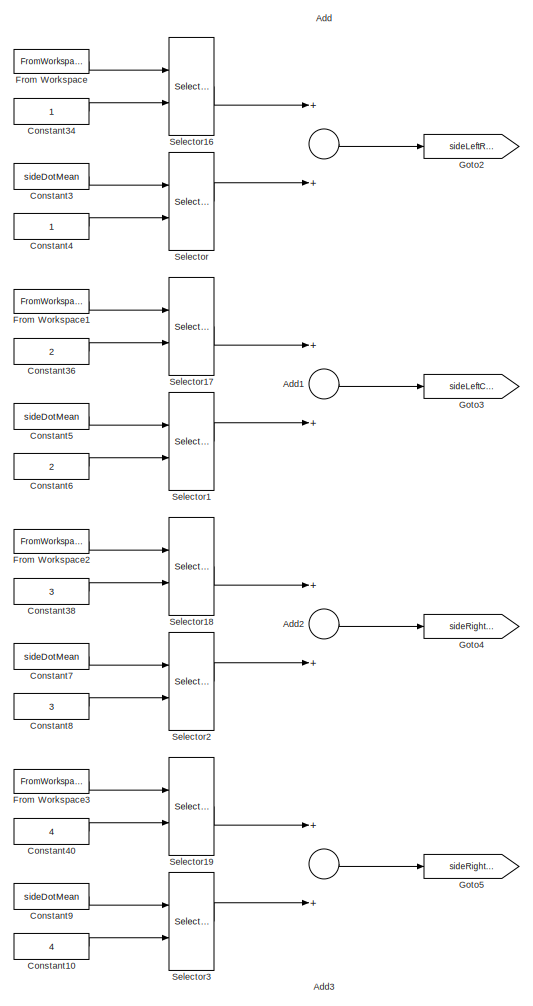
[diagram: root canvas - part 1/4, left side, full height]
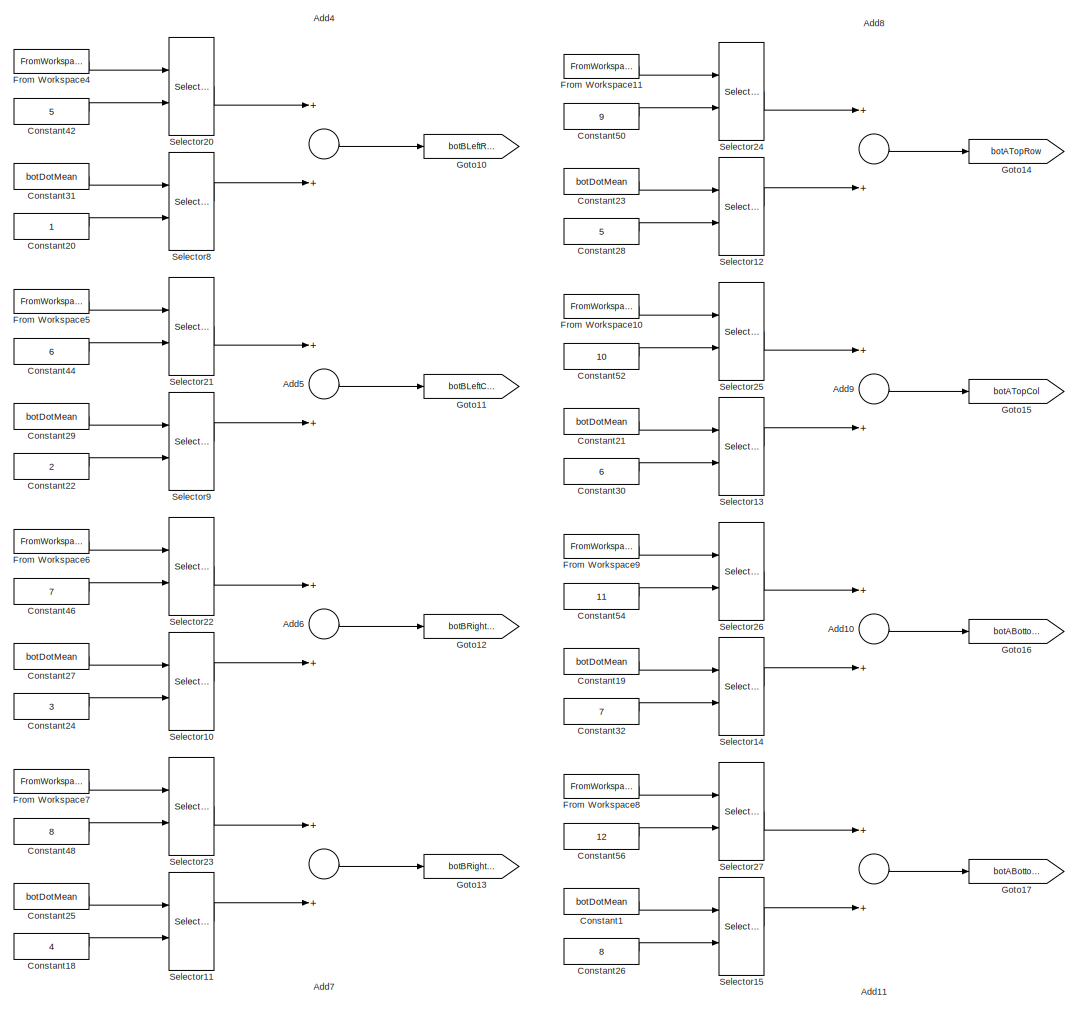
[diagram: root canvas - part 2/4, left side, full height]
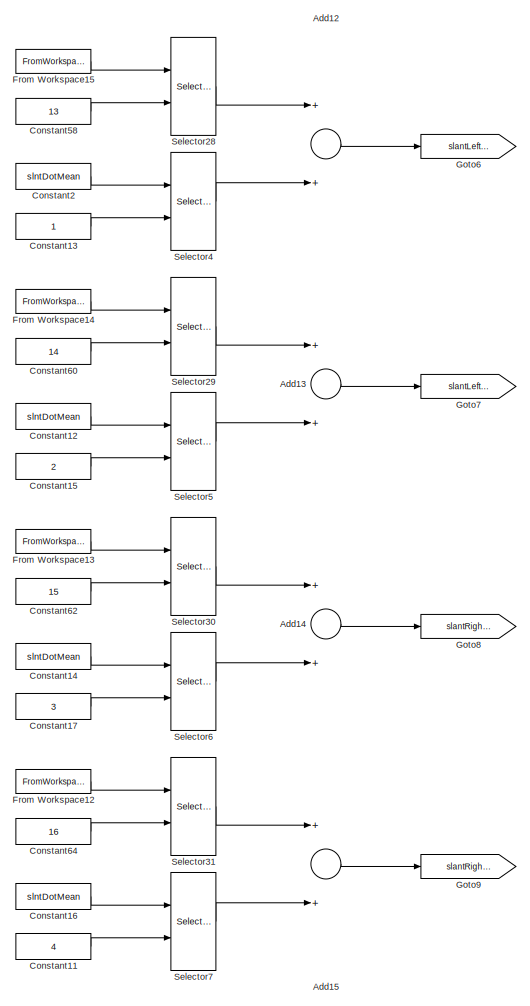
[diagram: root canvas - part 3/4, center side, full height]
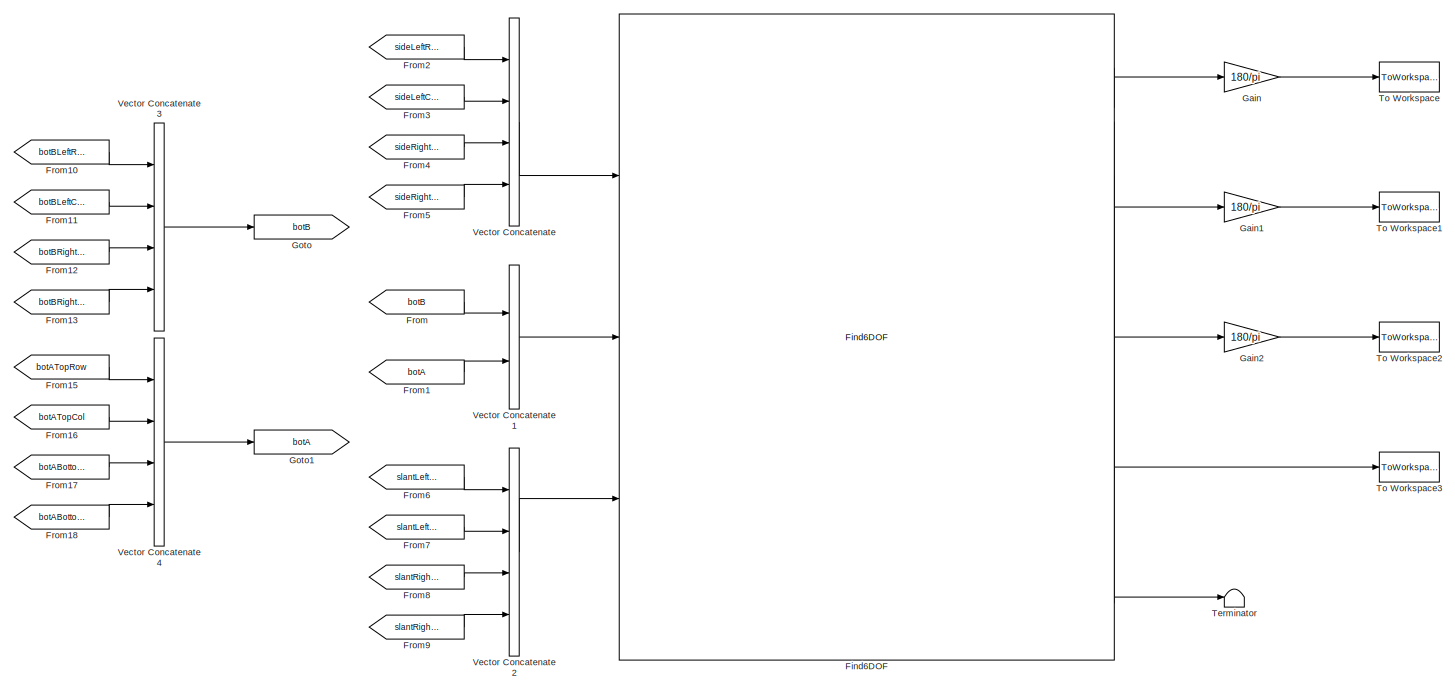
[diagram: root canvas - part 4/4, middle right region]
MODEL slx_73df9659145c
KIND model
CONFIG AbsTol = auto
CONFIG EnableMultiTasking = off
CONFIG FixedStep = 1
CONFIG MaxStep = auto
CONFIG MinStep = auto
CONFIG RelTol = 1e-3
CONFIG SampleTimeConstraint = Unconstrained
CONFIG Solver = ode8
CONFIG SolverName = ode8
CONFIG StartTime = 0.0
CONFIG StopTime = end_time
BLOCK [Sum] Add
  InputSameDT = off
  OutDataTypeStr = Inherit: Inherit via internal rule
  Ports = [2, 1]
  SaturateOnIntegerOverflow = off
BLOCK [Sum] Add1
  InputSameDT = off
  OutDataTypeStr = Inherit: Inherit via internal rule
  Ports = [2, 1]
  SaturateOnIntegerOverflow = off
BLOCK [Sum] Add10
  InputSameDT = off
  OutDataTypeStr = Inherit: Inherit via internal rule
  Ports = [2, 1]
  SaturateOnIntegerOverflow = off
BLOCK [Sum] Add11
  InputSameDT = off
  OutDataTypeStr = Inherit: Inherit via internal rule
  Ports = [2, 1]
  SaturateOnIntegerOverflow = off
BLOCK [Sum] Add12
  InputSameDT = off
  OutDataTypeStr = Inherit: Inherit via internal rule
  Ports = [2, 1]
  SaturateOnIntegerOverflow = off
BLOCK [Sum] Add13
  InputSameDT = off
  OutDataTypeStr = Inherit: Inherit via internal rule
  Ports = [2, 1]
  SaturateOnIntegerOverflow = off
BLOCK [Sum] Add14
  InputSameDT = off
  OutDataTypeStr = Inherit: Inherit via internal rule
  Ports = [2, 1]
  SaturateOnIntegerOverflow = off
BLOCK [Sum] Add15
  InputSameDT = off
  OutDataTypeStr = Inherit: Inherit via internal rule
  Ports = [2, 1]
  SaturateOnIntegerOverflow = off
BLOCK [Sum] Add2
  InputSameDT = off
  OutDataTypeStr = Inherit: Inherit via internal rule
  Ports = [2, 1]
  SaturateOnIntegerOverflow = off
BLOCK [Sum] Add3
  InputSameDT = off
  OutDataTypeStr = Inherit: Inherit via internal rule
  Ports = [2, 1]
  SaturateOnIntegerOverflow = off
BLOCK [Sum] Add4
  InputSameDT = off
  OutDataTypeStr = Inherit: Inherit via internal rule
  Ports = [2, 1]
  SaturateOnIntegerOverflow = off
BLOCK [Sum] Add5
  InputSameDT = off
  OutDataTypeStr = Inherit: Inherit via internal rule
  Ports = [2, 1]
  SaturateOnIntegerOverflow = off
BLOCK [Sum] Add6
  InputSameDT = off
  OutDataTypeStr = Inherit: Inherit via internal rule
  Ports = [2, 1]
  SaturateOnIntegerOverflow = off
BLOCK [Sum] Add7
  InputSameDT = off
  OutDataTypeStr = Inherit: Inherit via internal rule
  Ports = [2, 1]
  SaturateOnIntegerOverflow = off
BLOCK [Sum] Add8
  InputSameDT = off
  OutDataTypeStr = Inherit: Inherit via internal rule
  Ports = [2, 1]
  SaturateOnIntegerOverflow = off
BLOCK [Sum] Add9
  InputSameDT = off
  OutDataTypeStr = Inherit: Inherit via internal rule
  Ports = [2, 1]
  SaturateOnIntegerOverflow = off
BLOCK [Constant] Constant1
  Value = botDotMean
BLOCK [Constant] Constant10
  Value = 4
BLOCK [Constant] Constant11
  Value = 4
BLOCK [Constant] Constant12
  Value = slntDotMean
BLOCK [Constant] Constant13
BLOCK [Constant] Constant14
  Value = slntDotMean
BLOCK [Constant] Constant15
  Value = 2
BLOCK [Constant] Constant16
  Value = slntDotMean
BLOCK [Constant] Constant17
  Value = 3
BLOCK [Constant] Constant18
  Value = 4
BLOCK [Constant] Constant19
  Value = botDotMean
BLOCK [Constant] Constant2
  Value = slntDotMean
BLOCK [Constant] Constant20
BLOCK [Constant] Constant21
  Value = botDotMean
BLOCK [Constant] Constant22
  Value = 2
BLOCK [Constant] Constant23
  Value = botDotMean
BLOCK [Constant] Constant24
  Value = 3
BLOCK [Constant] Constant25
  Value = botDotMean
BLOCK [Constant] Constant26
  Value = 8
BLOCK [Constant] Constant27
  Value = botDotMean
BLOCK [Constant] Constant28
  Value = 5
BLOCK [Constant] Constant29
  Value = botDotMean
BLOCK [Constant] Constant3
  Value = sideDotMean
BLOCK [Constant] Constant30
  Value = 6
BLOCK [Constant] Constant31
  Value = botDotMean
BLOCK [Constant] Constant32
  Value = 7
BLOCK [Constant] Constant34
BLOCK [Constant] Constant36
  Value = 2
BLOCK [Constant] Constant38
  Value = 3
BLOCK [Constant] Constant4
BLOCK [Constant] Constant40
  Value = 4
BLOCK [Constant] Constant42
  Value = 5
BLOCK [Constant] Constant44
  Value = 6
BLOCK [Constant] Constant46
  Value = 7
BLOCK [Constant] Constant48
  Value = 8
BLOCK [Constant] Constant5
  Value = sideDotMean
BLOCK [Constant] Constant50
  Value = 9
BLOCK [Constant] Constant52
  Value = 10
BLOCK [Constant] Constant54
  Value = 11
BLOCK [Constant] Constant56
  Value = 12
BLOCK [Constant] Constant58
  Value = 13
BLOCK [Constant] Constant6
  Value = 2
BLOCK [Constant] Constant60
  Value = 14
BLOCK [Constant] Constant62
  Value = 15
BLOCK [Constant] Constant64
  Value = 16
BLOCK [Constant] Constant7
  Value = sideDotMean
BLOCK [Constant] Constant8
  Value = 3
BLOCK [Constant] Constant9
  Value = sideDotMean
BLOCK [Reference] Find6DOF  REF=find6DOF_cl/Find6DOF
  Ports = [3, 11]
  SourceBlock = find6DOF_cl/Find6DOF
BLOCK [From] From
  GotoTag = botB
BLOCK [FromWorkspace] From Workspace
  SampleTime = 0
  VariableName = pertubation
  ZeroCross = on
BLOCK [FromWorkspace] From Workspace1
  SampleTime = 0
  VariableName = pertubation
  ZeroCross = on
BLOCK [FromWorkspace] From Workspace10
  SampleTime = 0
  VariableName = pertubation
  ZeroCross = on
BLOCK [FromWorkspace] From Workspace11
  SampleTime = 0
  VariableName = pertubation
  ZeroCross = on
BLOCK [FromWorkspace] From Workspace12
  SampleTime = 0
  VariableName = pertubation
  ZeroCross = on
BLOCK [FromWorkspace] From Workspace13
  SampleTime = 0
  VariableName = pertubation
  ZeroCross = on
BLOCK [FromWorkspace] From Workspace14
  SampleTime = 0
  VariableName = pertubation
  ZeroCross = on
BLOCK [FromWorkspace] From Workspace15
  SampleTime = 0
  VariableName = pertubation
  ZeroCross = on
BLOCK [FromWorkspace] From Workspace2
  SampleTime = 0
  VariableName = pertubation
  ZeroCross = on
BLOCK [FromWorkspace] From Workspace3
  SampleTime = 0
  VariableName = pertubation
  ZeroCross = on
BLOCK [FromWorkspace] From Workspace4
  SampleTime = 0
  VariableName = pertubation
  ZeroCross = on
BLOCK [FromWorkspace] From Workspace5
  SampleTime = 0
  VariableName = pertubation
  ZeroCross = on
BLOCK [FromWorkspace] From Workspace6
  SampleTime = 0
  VariableName = pertubation
  ZeroCross = on
BLOCK [FromWorkspace] From Workspace7
  SampleTime = 0
  VariableName = pertubation
  ZeroCross = on
BLOCK [FromWorkspace] From Workspace8
  SampleTime = 0
  VariableName = pertubation
  ZeroCross = on
BLOCK [FromWorkspace] From Workspace9
  SampleTime = 0
  VariableName = pertubation
  ZeroCross = on
BLOCK [From] From1
  GotoTag = botA
BLOCK [From] From10
  GotoTag = botBLeftRow
BLOCK [From] From11
  GotoTag = botBLeftCol
BLOCK [From] From12
  GotoTag = botBRightRow
BLOCK [From] From13
  GotoTag = botBRightCol
BLOCK [From] From15
  GotoTag = botATopRow
BLOCK [From] From16
  GotoTag = botATopCol
BLOCK [From] From17
  GotoTag = botABottomRow
BLOCK [From] From18
  GotoTag = botABottomCol
BLOCK [From] From2
  GotoTag = sideLeftRow
BLOCK [From] From3
  GotoTag = sideLeftCol
BLOCK [From] From4
  GotoTag = sideRightRow
BLOCK [From] From5
  GotoTag = sideRightCol
BLOCK [From] From6
  GotoTag = slantLeftRow
BLOCK [From] From7
  GotoTag = slantLeftCol
BLOCK [From] From8
  GotoTag = slantRightRow
BLOCK [From] From9
  GotoTag = slantRightCol
BLOCK [Gain] Gain
  Gain = 180/pi
  OutDataTypeStr = Inherit: Inherit via internal rule
  ParamDataTypeStr = Inherit: Inherit via internal rule
  SaturateOnIntegerOverflow = off
BLOCK [Gain] Gain1
  Gain = 180/pi
  OutDataTypeStr = Inherit: Inherit via internal rule
  ParamDataTypeStr = Inherit: Inherit via internal rule
  SaturateOnIntegerOverflow = off
BLOCK [Gain] Gain2
  Gain = 180/pi
  OutDataTypeStr = Inherit: Inherit via internal rule
  ParamDataTypeStr = Inherit: Inherit via internal rule
  SaturateOnIntegerOverflow = off
BLOCK [Goto] Goto
  GotoTag = botB
BLOCK [Goto] Goto1
  GotoTag = botA
BLOCK [Goto] Goto10
  GotoTag = botBLeftRow
BLOCK [Goto] Goto11
  GotoTag = botBLeftCol
BLOCK [Goto] Goto12
  GotoTag = botBRightRow
BLOCK [Goto] Goto13
  GotoTag = botBRightCol
BLOCK [Goto] Goto14
  GotoTag = botATopRow
BLOCK [Goto] Goto15
  GotoTag = botATopCol
BLOCK [Goto] Goto16
  GotoTag = botABottomRow
BLOCK [Goto] Goto17
  GotoTag = botABottomCol
BLOCK [Goto] Goto2
  GotoTag = sideLeftRow
BLOCK [Goto] Goto3
  GotoTag = sideLeftCol
BLOCK [Goto] Goto4
  GotoTag = sideRightRow
BLOCK [Goto] Goto5
  GotoTag = sideRightCol
BLOCK [Goto] Goto6
  GotoTag = slantLeftRow
BLOCK [Goto] Goto7
  GotoTag = slantLeftCol
BLOCK [Goto] Goto8
  GotoTag = slantRightRow
BLOCK [Goto] Goto9
  GotoTag = slantRightCol
BLOCK [Selector] Selector
  IndexOptions = Starting index (port)
  Indices = [1 3]
  InputPortWidth = 4
  OutputSizes = 1
  Ports = [2, 1]
BLOCK [Selector] Selector1
  IndexOptions = Starting index (port)
  Indices = [1 3]
  InputPortWidth = 4
  OutputSizes = 1
  Ports = [2, 1]
BLOCK [Selector] Selector10
  IndexOptions = Starting index (port)
  Indices = [1 3]
  InputPortWidth = 8
  OutputSizes = 1
  Ports = [2, 1]
BLOCK [Selector] Selector11
  IndexOptions = Starting index (port)
  Indices = [1 3]
  InputPortWidth = 8
  OutputSizes = 1
  Ports = [2, 1]
BLOCK [Selector] Selector12
  IndexOptions = Starting index (port)
  Indices = [1 3]
  InputPortWidth = 8
  OutputSizes = 1
  Ports = [2, 1]
BLOCK [Selector] Selector13
  IndexOptions = Starting index (port)
  Indices = [1 3]
  InputPortWidth = 8
  OutputSizes = 1
  Ports = [2, 1]
BLOCK [Selector] Selector14
  IndexOptions = Starting index (port)
  Indices = [1 3]
  InputPortWidth = 8
  OutputSizes = 1
  Ports = [2, 1]
BLOCK [Selector] Selector15
  IndexOptions = Starting index (port)
  Indices = [1 3]
  InputPortWidth = 8
  OutputSizes = 1
  Ports = [2, 1]
BLOCK [Selector] Selector16
  IndexOptions = Starting index (port)
  Indices = [1 3]
  InputPortWidth = 16
  OutputSizes = 1
  Ports = [2, 1]
BLOCK [Selector] Selector17
  IndexOptions = Starting index (port)
  Indices = [1 3]
  InputPortWidth = 16
  OutputSizes = 1
  Ports = [2, 1]
BLOCK [Selector] Selector18
  IndexOptions = Starting index (port)
  Indices = [1 3]
  InputPortWidth = 16
  OutputSizes = 1
  Ports = [2, 1]
BLOCK [Selector] Selector19
  IndexOptions = Starting index (port)
  Indices = [1 3]
  InputPortWidth = 16
  OutputSizes = 1
  Ports = [2, 1]
BLOCK [Selector] Selector2
  IndexOptions = Starting index (port)
  Indices = [1 3]
  InputPortWidth = 4
  OutputSizes = 1
  Ports = [2, 1]
BLOCK [Selector] Selector20
  IndexOptions = Starting index (port)
  Indices = [1 3]
  InputPortWidth = 16
  OutputSizes = 1
  Ports = [2, 1]
BLOCK [Selector] Selector21
  IndexOptions = Starting index (port)
  Indices = [1 3]
  InputPortWidth = 16
  OutputSizes = 1
  Ports = [2, 1]
BLOCK [Selector] Selector22
  IndexOptions = Starting index (port)
  Indices = [1 3]
  InputPortWidth = 16
  OutputSizes = 1
  Ports = [2, 1]
BLOCK [Selector] Selector23
  IndexOptions = Starting index (port)
  Indices = [1 3]
  InputPortWidth = 16
  OutputSizes = 1
  Ports = [2, 1]
BLOCK [Selector] Selector24
  IndexOptions = Starting index (port)
  Indices = [1 3]
  InputPortWidth = 16
  OutputSizes = 1
  Ports = [2, 1]
BLOCK [Selector] Selector25
  IndexOptions = Starting index (port)
  Indices = [1 3]
  InputPortWidth = 16
  OutputSizes = 1
  Ports = [2, 1]
BLOCK [Selector] Selector26
  IndexOptions = Starting index (port)
  Indices = [1 3]
  InputPortWidth = 16
  OutputSizes = 1
  Ports = [2, 1]
BLOCK [Selector] Selector27
  IndexOptions = Starting index (port)
  Indices = [1 3]
  InputPortWidth = 16
  OutputSizes = 1
  Ports = [2, 1]
BLOCK [Selector] Selector28
  IndexOptions = Starting index (port)
  Indices = [1 3]
  InputPortWidth = 16
  OutputSizes = 1
  Ports = [2, 1]
BLOCK [Selector] Selector29
  IndexOptions = Starting index (port)
  Indices = [1 3]
  InputPortWidth = 16
  OutputSizes = 1
  Ports = [2, 1]
BLOCK [Selector] Selector3
  IndexOptions = Starting index (port)
  Indices = [1 3]
  InputPortWidth = 4
  OutputSizes = 1
  Ports = [2, 1]
BLOCK [Selector] Selector30
  IndexOptions = Starting index (port)
  Indices = [1 3]
  InputPortWidth = 16
  OutputSizes = 1
  Ports = [2, 1]
BLOCK [Selector] Selector31
  IndexOptions = Starting index (port)
  Indices = [1 3]
  InputPortWidth = 16
  OutputSizes = 1
  Ports = [2, 1]
BLOCK [Selector] Selector4
  IndexOptions = Starting index (port)
  Indices = [1 3]
  InputPortWidth = 4
  OutputSizes = 1
  Ports = [2, 1]
BLOCK [Selector] Selector5
  IndexOptions = Starting index (port)
  Indices = [1 3]
  InputPortWidth = 4
  OutputSizes = 1
  Ports = [2, 1]
BLOCK [Selector] Selector6
  IndexOptions = Starting index (port)
  Indices = [1 3]
  InputPortWidth = 4
  OutputSizes = 1
  Ports = [2, 1]
BLOCK [Selector] Selector7
  IndexOptions = Starting index (port)
  Indices = [1 3]
  InputPortWidth = 4
  OutputSizes = 1
  Ports = [2, 1]
BLOCK [Selector] Selector8
  IndexOptions = Starting index (port)
  Indices = [1 3]
  InputPortWidth = 8
  OutputSizes = 1
  Ports = [2, 1]
BLOCK [Selector] Selector9
  IndexOptions = Starting index (port)
  Indices = [1 3]
  InputPortWidth = 8
  OutputSizes = 1
  Ports = [2, 1]
BLOCK [Terminator] Terminator
BLOCK [ToWorkspace] To Workspace
  FixptAsFi = on
  MaxDataPoints = inf
  Ports = [1]
  SampleTime = -1
  Save2DSignal = 3-D array (concatenate along third dimension)
  SaveFormat = Timeseries
  VariableName = roll_deg
BLOCK [ToWorkspace] To Workspace1
  FixptAsFi = on
  MaxDataPoints = inf
  Ports = [1]
  SampleTime = -1
  Save2DSignal = 3-D array (concatenate along third dimension)
  SaveFormat = Timeseries
  VariableName = pitch_deg
BLOCK [ToWorkspace] To Workspace2
  FixptAsFi = on
  MaxDataPoints = inf
  Ports = [1]
  SampleTime = -1
  Save2DSignal = 3-D array (concatenate along third dimension)
  SaveFormat = Timeseries
  VariableName = yaw_deg
BLOCK [ToWorkspace] To Workspace3
  FixptAsFi = on
  MaxDataPoints = inf
  Ports = [1]
  SampleTime = -1
  Save2DSignal = 3-D array (concatenate along third dimension)
  SaveFormat = Timeseries
  VariableName = com_pos
BLOCK [Concatenate] Vector Concatenate
  NumInputs = 4
  Ports = [4, 1]
BLOCK [Concatenate] Vector Concatenate1
  Ports = [2, 1]
BLOCK [Concatenate] Vector Concatenate2
  NumInputs = 4
  Ports = [4, 1]
BLOCK [Concatenate] Vector Concatenate3
  NumInputs = 4
  Ports = [4, 1]
BLOCK [Concatenate] Vector Concatenate4
  NumInputs = 4
  Ports = [4, 1]
LINE Add10:1 -> Goto16:1
LINE Add11:1 -> Goto17:1
LINE Add12:1 -> Goto6:1
LINE Add13:1 -> Goto7:1
LINE Add14:1 -> Goto8:1
LINE Add15:1 -> Goto9:1
LINE Add1:1 -> Goto3:1
LINE Add2:1 -> Goto4:1
LINE Add3:1 -> Goto5:1
LINE Add4:1 -> Goto10:1
LINE Add5:1 -> Goto11:1
LINE Add6:1 -> Goto12:1
LINE Add7:1 -> Goto13:1
LINE Add8:1 -> Goto14:1
LINE Add9:1 -> Goto15:1
LINE Add:1 -> Goto2:1
LINE Constant10:1 -> Selector3:2
LINE Constant11:1 -> Selector7:2
LINE Constant12:1 -> Selector5:1
LINE Constant13:1 -> Selector4:2
LINE Constant14:1 -> Selector6:1
LINE Constant15:1 -> Selector5:2
LINE Constant16:1 -> Selector7:1
LINE Constant17:1 -> Selector6:2
LINE Constant18:1 -> Selector11:2
LINE Constant19:1 -> Selector14:1
LINE Constant1:1 -> Selector15:1
LINE Constant20:1 -> Selector8:2
LINE Constant21:1 -> Selector13:1
LINE Constant22:1 -> Selector9:2
LINE Constant23:1 -> Selector12:1
LINE Constant24:1 -> Selector10:2
LINE Constant25:1 -> Selector11:1
LINE Constant26:1 -> Selector15:2
LINE Constant27:1 -> Selector10:1
LINE Constant28:1 -> Selector12:2
LINE Constant29:1 -> Selector9:1
LINE Constant2:1 -> Selector4:1
LINE Constant30:1 -> Selector13:2
LINE Constant31:1 -> Selector8:1
LINE Constant32:1 -> Selector14:2
LINE Constant34:1 -> Selector16:2
LINE Constant36:1 -> Selector17:2
LINE Constant38:1 -> Selector18:2
LINE Constant3:1 -> Selector:1
LINE Constant40:1 -> Selector19:2
LINE Constant42:1 -> Selector20:2
LINE Constant44:1 -> Selector21:2
LINE Constant46:1 -> Selector22:2
LINE Constant48:1 -> Selector23:2
LINE Constant4:1 -> Selector:2
LINE Constant50:1 -> Selector24:2
LINE Constant52:1 -> Selector25:2
LINE Constant54:1 -> Selector26:2
LINE Constant56:1 -> Selector27:2
LINE Constant58:1 -> Selector28:2
LINE Constant5:1 -> Selector1:1
LINE Constant60:1 -> Selector29:2
LINE Constant62:1 -> Selector30:2
LINE Constant64:1 -> Selector31:2
LINE Constant6:1 -> Selector1:2
LINE Constant7:1 -> Selector2:1
LINE Constant8:1 -> Selector2:2
LINE Constant9:1 -> Selector3:1
LINE Find6DOF:1 -> Gain:1
LINE Find6DOF:2 -> Gain1:1
LINE Find6DOF:3 -> Gain2:1
LINE Find6DOF:4 -> To Workspace3:1
LINE Find6DOF:5 -> Terminator:1
LINE From Workspace10:1 -> Selector25:1
LINE From Workspace11:1 -> Selector24:1
LINE From Workspace12:1 -> Selector31:1
LINE From Workspace13:1 -> Selector30:1
LINE From Workspace14:1 -> Selector29:1
LINE From Workspace15:1 -> Selector28:1
LINE From Workspace1:1 -> Selector17:1
LINE From Workspace2:1 -> Selector18:1
LINE From Workspace3:1 -> Selector19:1
LINE From Workspace4:1 -> Selector20:1
LINE From Workspace5:1 -> Selector21:1
LINE From Workspace6:1 -> Selector22:1
LINE From Workspace7:1 -> Selector23:1
LINE From Workspace8:1 -> Selector27:1
LINE From Workspace9:1 -> Selector26:1
LINE From Workspace:1 -> Selector16:1
LINE From10:1 -> Vector Concatenate3:1
LINE From11:1 -> Vector Concatenate3:2
LINE From12:1 -> Vector Concatenate3:3
LINE From13:1 -> Vector Concatenate3:4
LINE From15:1 -> Vector Concatenate4:1
LINE From16:1 -> Vector Concatenate4:2
LINE From17:1 -> Vector Concatenate4:3
LINE From18:1 -> Vector Concatenate4:4
LINE From1:1 -> Vector Concatenate1:2
LINE From2:1 -> Vector Concatenate:1
LINE From3:1 -> Vector Concatenate:2
LINE From4:1 -> Vector Concatenate:3
LINE From5:1 -> Vector Concatenate:4
LINE From6:1 -> Vector Concatenate2:1
LINE From7:1 -> Vector Concatenate2:2
LINE From8:1 -> Vector Concatenate2:3
LINE From9:1 -> Vector Concatenate2:4
LINE From:1 -> Vector Concatenate1:1
LINE Gain1:1 -> To Workspace1:1
LINE Gain2:1 -> To Workspace2:1
LINE Gain:1 -> To Workspace:1
LINE Selector10:1 -> Add6:2
LINE Selector11:1 -> Add7:2
LINE Selector12:1 -> Add8:2
LINE Selector13:1 -> Add9:2
LINE Selector14:1 -> Add10:2
LINE Selector15:1 -> Add11:2
LINE Selector16:1 -> Add:1
LINE Selector17:1 -> Add1:1
LINE Selector18:1 -> Add2:1
LINE Selector19:1 -> Add3:1
LINE Selector1:1 -> Add1:2
LINE Selector20:1 -> Add4:1
LINE Selector21:1 -> Add5:1
LINE Selector22:1 -> Add6:1
LINE Selector23:1 -> Add7:1
LINE Selector24:1 -> Add8:1
LINE Selector25:1 -> Add9:1
LINE Selector26:1 -> Add10:1
LINE Selector27:1 -> Add11:1
LINE Selector28:1 -> Add12:1
LINE Selector29:1 -> Add13:1
LINE Selector2:1 -> Add2:2
LINE Selector30:1 -> Add14:1
LINE Selector31:1 -> Add15:1
LINE Selector3:1 -> Add3:2
LINE Selector4:1 -> Add12:2
LINE Selector5:1 -> Add13:2
LINE Selector6:1 -> Add14:2
LINE Selector7:1 -> Add15:2
LINE Selector8:1 -> Add4:2
LINE Selector9:1 -> Add5:2
LINE Selector:1 -> Add:2
LINE Vector Concatenate1:1 -> Find6DOF:2
LINE Vector Concatenate2:1 -> Find6DOF:3
LINE Vector Concatenate3:1 -> Goto:1
LINE Vector Concatenate4:1 -> Goto1:1
LINE Vector Concatenate:1 -> Find6DOF:1
